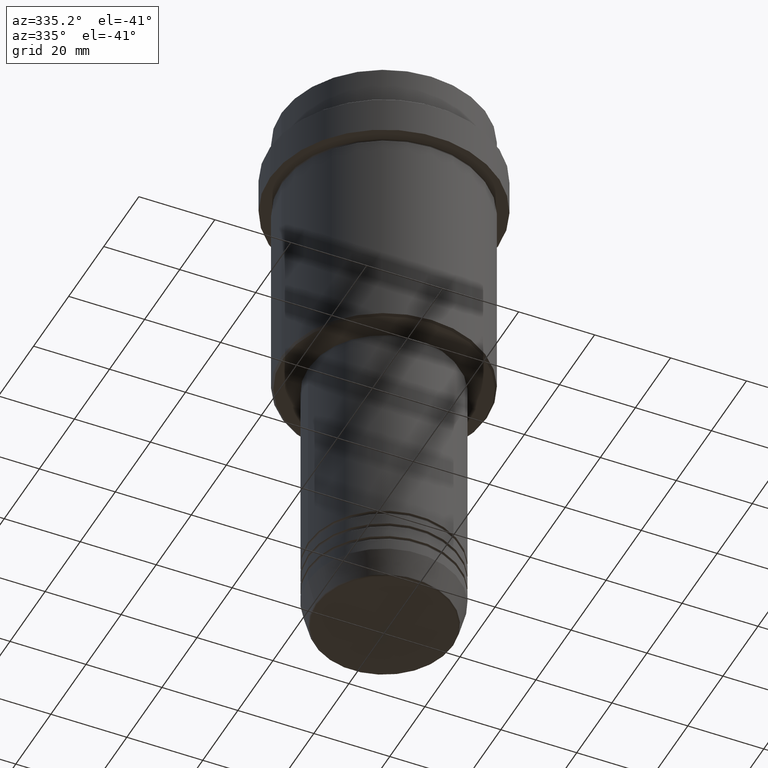
[diagram: clean part render]
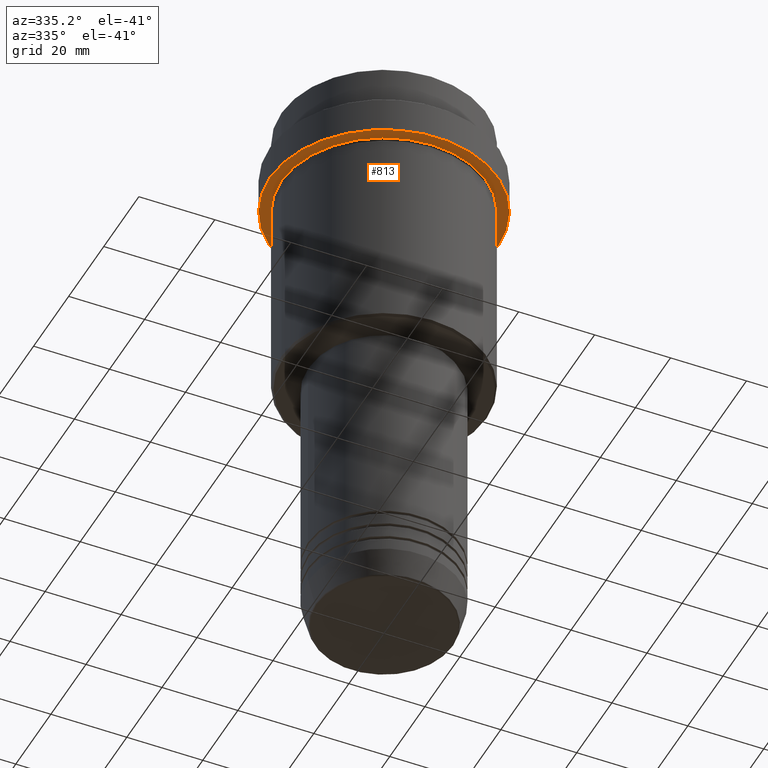
[diagram: same view with one face highlighted and labeled with its STEP entity id]
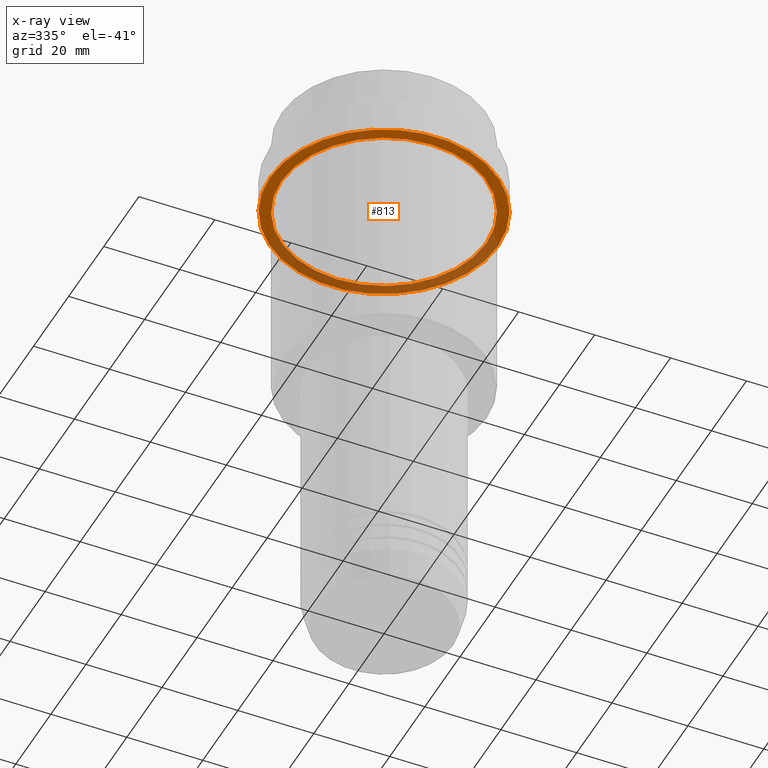
[diagram: x-ray of the same camera — body ghosted, the highlighted face saturated]
A machine part, auxiliary view. The second image highlights one B-rep face of the part: STEP entity #813.
The next image is the same camera in x-ray: the body ghosted, the highlighted face saturated — about 39% of this face is hidden behind the body in this view.
In plain terms, the highlighted planar face has unit normal (0, 0, -1).
Its self-contained STEP definition (entity closure, byte-faithful):
#23 = DIRECTION ( 'NONE',  ( -0.000000000000000000, -0.000000000000000000, 1.000000000000000000 ) ) ;
#55 = CIRCLE ( 'NONE', #1054, 26.99999999999999289 ) ;
#62 = CARTESIAN_POINT ( 'NONE',  ( 0.000000000000000000, 0.000000000000000000, -22.00000000000000355 ) ) ;
#153 = DIRECTION ( 'NONE',  ( -1.000000000000000000, 0.000000000000000000, 0.000000000000000000 ) ) ;
#212 = AXIS2_PLACEMENT_3D ( 'NONE', #274, #1144, #153 ) ;
#236 = CIRCLE ( 'NONE', #1359, 29.99999999999999645 ) ;
#264 = CARTESIAN_POINT ( 'NONE',  ( 0.000000000000000000, 29.99999999999999645, -22.00000000000000000 ) ) ;
#274 = CARTESIAN_POINT ( 'NONE',  ( 0.000000000000000000, 0.000000000000000000, -22.00000000000000000 ) ) ;
#279 = CIRCLE ( 'NONE', #212, 26.99999999999999289 ) ;
#300 = DIRECTION ( 'NONE',  ( -0.000000000000000000, -0.000000000000000000, 1.000000000000000000 ) ) ;
#370 = CARTESIAN_POINT ( 'NONE',  ( 0.000000000000000000, 0.000000000000000000, -22.00000000000000355 ) ) ;
#378 = DIRECTION ( 'NONE',  ( -0.000000000000000000, -0.000000000000000000, 1.000000000000000000 ) ) ;
#393 = DIRECTION ( 'NONE',  ( 1.000000000000000000, 0.000000000000000000, 0.000000000000000000 ) ) ;
#402 = ORIENTED_EDGE ( 'NONE', *, *, #1378, .T. ) ;
#461 = CARTESIAN_POINT ( 'NONE',  ( 26.99999999999999289, 3.306546357697852944E-15, -22.00000000000000000 ) ) ;
#465 = DIRECTION ( 'NONE',  ( -1.000000000000000000, 0.000000000000000000, 0.000000000000000000 ) ) ;
#480 = FACE_BOUND ( 'NONE', #916, .T. ) ;
#505 = CARTESIAN_POINT ( 'NONE',  ( -26.99999999999999289, 0.000000000000000000, -22.00000000000000000 ) ) ;
#519 = ORIENTED_EDGE ( 'NONE', *, *, #954, .F. ) ;
#635 = VERTEX_POINT ( 'NONE', #461 ) ;
#770 = ORIENTED_EDGE ( 'NONE', *, *, #1285, .T. ) ;
#813 = ADVANCED_FACE ( 'NONE', ( #480, #1032 ), #1135, .T. ) ;
#835 = AXIS2_PLACEMENT_3D ( 'NONE', #62, #300, #393 ) ;
#916 = EDGE_LOOP ( 'NONE', ( #770, #402 ) ) ;
#928 = DIRECTION ( 'NONE',  ( 1.000000000000000000, 0.000000000000000000, 0.000000000000000000 ) ) ;
#954 = EDGE_CURVE ( 'NONE', #1157, #1402, #1016, .T. ) ;
#980 = VERTEX_POINT ( 'NONE', #505 ) ;
#1003 = EDGE_LOOP ( 'NONE', ( #1073, #519 ) ) ;
#1016 = CIRCLE ( 'NONE', #835, 29.99999999999999645 ) ;
#1032 = FACE_OUTER_BOUND ( 'NONE', #1003, .T. ) ;
#1054 = AXIS2_PLACEMENT_3D ( 'NONE', #1347, #23, #465 ) ;
#1073 = ORIENTED_EDGE ( 'NONE', *, *, #1311, .F. ) ;
#1135 = PLANE ( 'NONE',  #1150 ) ;
#1144 = DIRECTION ( 'NONE',  ( -0.000000000000000000, -0.000000000000000000, 1.000000000000000000 ) ) ;
#1150 = AXIS2_PLACEMENT_3D ( 'NONE', #264, #1345, #1245 ) ;
#1157 = VERTEX_POINT ( 'NONE', #1304 ) ;
#1245 = DIRECTION ( 'NONE',  ( -1.000000000000000000, 0.000000000000000000, -0.000000000000000000 ) ) ;
#1283 = CARTESIAN_POINT ( 'NONE',  ( 29.99999999999999645, 0.000000000000000000, -22.00000000000000355 ) ) ;
#1285 = EDGE_CURVE ( 'NONE', #980, #635, #55, .T. ) ;
#1304 = CARTESIAN_POINT ( 'NONE',  ( -29.99999999999999645, 3.673940397442058389E-15, -22.00000000000000355 ) ) ;
#1311 = EDGE_CURVE ( 'NONE', #1402, #1157, #236, .T. ) ;
#1345 = DIRECTION ( 'NONE',  ( 0.000000000000000000, 0.000000000000000000, -1.000000000000000000 ) ) ;
#1347 = CARTESIAN_POINT ( 'NONE',  ( 0.000000000000000000, 0.000000000000000000, -22.00000000000000000 ) ) ;
#1359 = AXIS2_PLACEMENT_3D ( 'NONE', #370, #378, #928 ) ;
#1378 = EDGE_CURVE ( 'NONE', #635, #980, #279, .T. ) ;
#1402 = VERTEX_POINT ( 'NONE', #1283 ) ;